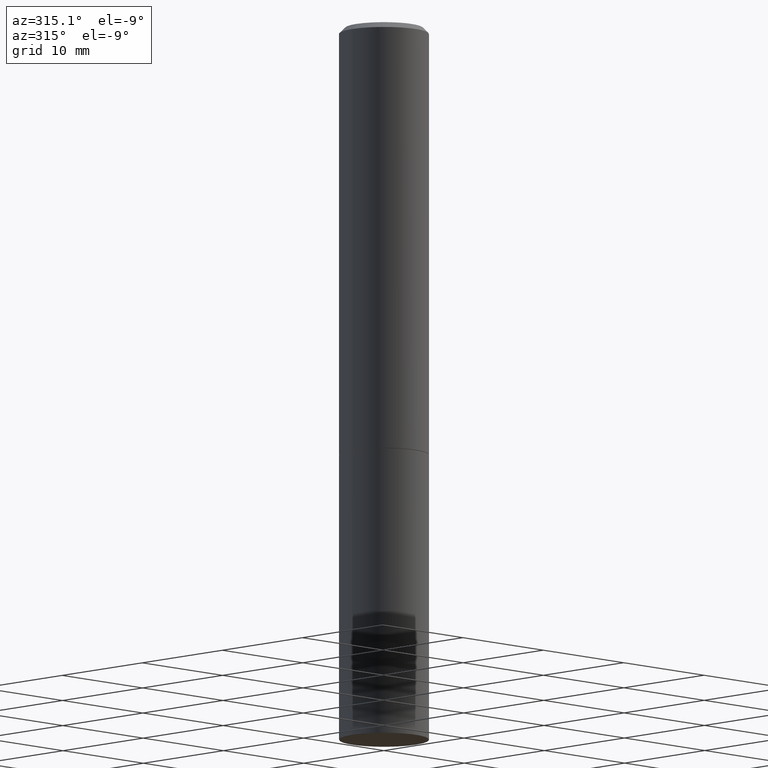
[diagram: clean part render]
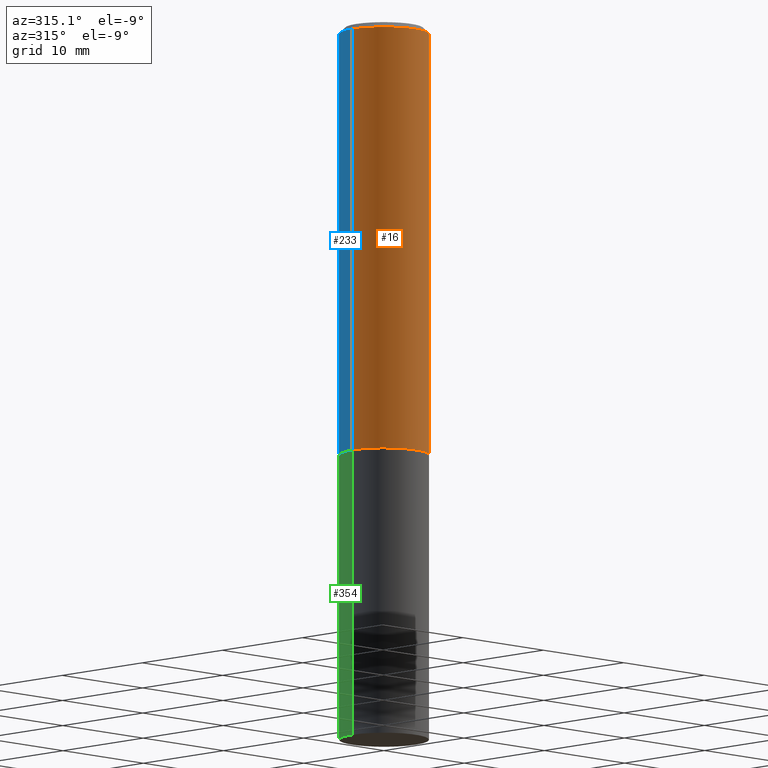
[diagram: same view with three faces highlighted in distinct colors, each labeled with its STEP entity id]
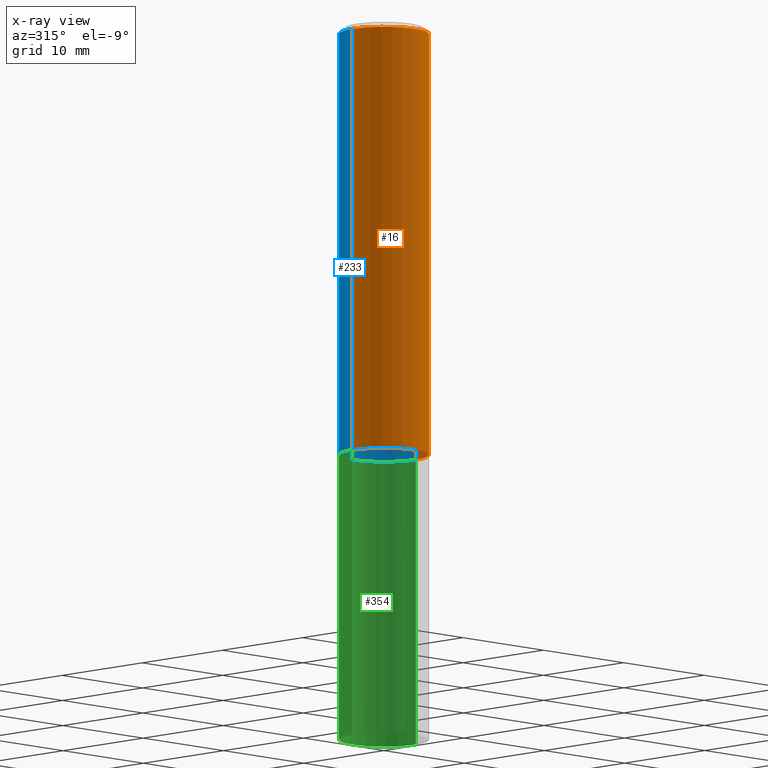
[diagram: x-ray of the same camera — body ghosted, the three highlighted faces saturated]
A machine part, auxiliary view with three faces highlighted in distinct colors.
The next image is the same camera in x-ray (body ghosted, the three faces saturated) — at least one of them is partly hidden behind the body in this view.
Their STEP definitions:

[orange] entity #16 — the highlighted cylindrical surface (partial cylindrical patch) has radius 3.9687 mm, axis along (-0, 0, 1).
#16 = ADVANCED_FACE ( 'NONE', ( #72 ), #362, .T. ) ;
#17 = CARTESIAN_POINT ( 'NONE',  ( 0.1562499999999999445, -1.091087918388478779E-15, 7.619026212181146173E-30 ) ) ;
#22 = ORIENTED_EDGE ( 'NONE', *, *, #276, .F. ) ;
#60 = CIRCLE ( 'NONE', #217, 0.1562500000000000000 ) ;
#62 = VECTOR ( 'NONE', #173, 39.37007874015748143 ) ;
#72 = FACE_OUTER_BOUND ( 'NONE', #101, .T. ) ;
#84 = DIRECTION ( 'NONE',  ( 1.000000000000000000, -6.982962677686265133E-15, 0.000000000000000000 ) ) ;
#94 = EDGE_CURVE ( 'NONE', #188, #196, #289, .T. ) ;
#100 = CARTESIAN_POINT ( 'NONE',  ( -0.1562499999999998335, 1.021258291611615086E-15, -0.02000000000000003511 ) ) ;
#101 = EDGE_LOOP ( 'NONE', ( #22, #306, #190, #184 ) ) ;
#105 = DIRECTION ( 'NONE',  ( 1.000000000000000000, -6.982962677686266711E-15, 4.876176775795935232E-29 ) ) ;
#141 = CARTESIAN_POINT ( 'NONE',  ( -0.1562500000000000000, -1.541557052226212102E-15, -1.499000000000000110 ) ) ;
#169 = CARTESIAN_POINT ( 'NONE',  ( 3.665757740471519853E-29, -5.233730526925875958E-15, -1.499000000000000110 ) ) ;
#173 = DIRECTION ( 'NONE',  ( -2.445468806185136877E-29, 3.491481338843145188E-15, 1.000000000000000000 ) ) ;
#184 = ORIENTED_EDGE ( 'NONE', *, *, #94, .F. ) ;
#188 = VERTEX_POINT ( 'NONE', #100 ) ;
#190 = ORIENTED_EDGE ( 'NONE', *, *, #212, .T. ) ;
#196 = VERTEX_POINT ( 'NONE', #281 ) ;
#203 = LINE ( 'NONE', #317, #62 ) ;
#212 = EDGE_CURVE ( 'NONE', #310, #196, #253, .T. ) ;
#217 = AXIS2_PLACEMENT_3D ( 'NONE', #169, #238, #364 ) ;
#234 = DIRECTION ( 'NONE',  ( -2.445468806185136597E-29, 3.491481338843145583E-15, 1.000000000000000000 ) ) ;
#235 = DIRECTION ( 'NONE',  ( -2.445468806185136597E-29, 3.491481338843145583E-15, 1.000000000000000000 ) ) ;
#237 = VECTOR ( 'NONE', #355, 39.37007874015748143 ) ;
#238 = DIRECTION ( 'NONE',  ( -2.445468806185136597E-29, 3.491481338843145583E-15, 1.000000000000000000 ) ) ;
#249 = EDGE_CURVE ( 'NONE', #314, #310, #60, .T. ) ;
#253 = LINE ( 'NONE', #17, #237 ) ;
#254 = CARTESIAN_POINT ( 'NONE',  ( 4.890937612370281041E-31, -6.982962677686302702E-17, -0.02000000000000003511 ) ) ;
#256 = AXIS2_PLACEMENT_3D ( 'NONE', #359, #234, #105 ) ;
#276 = EDGE_CURVE ( 'NONE', #314, #188, #203, .T. ) ;
#281 = CARTESIAN_POINT ( 'NONE',  ( 0.1562499999999998335, -1.141782438928663724E-15, -0.02000000000000003511 ) ) ;
#289 = CIRCLE ( 'NONE', #296, 0.1562499999999998335 ) ;
#296 = AXIS2_PLACEMENT_3D ( 'NONE', #254, #235, #84 ) ;
#306 = ORIENTED_EDGE ( 'NONE', *, *, #249, .T. ) ;
#310 = VERTEX_POINT ( 'NONE', #319 ) ;
#314 = VERTEX_POINT ( 'NONE', #141 ) ;
#317 = CARTESIAN_POINT ( 'NONE',  ( -0.1562499999999999445, 1.110223024625156146E-15, -7.685836078523286956E-30 ) ) ;
#319 = CARTESIAN_POINT ( 'NONE',  ( 0.1562500000000000000, -6.324818445314355132E-15, -1.499000000000000110 ) ) ;
#355 = DIRECTION ( 'NONE',  ( -2.445468806185136877E-29, 3.491481338843145188E-15, 1.000000000000000000 ) ) ;
#359 = CARTESIAN_POINT ( 'NONE',  ( 0.000000000000000000, 0.000000000000000000, 0.000000000000000000 ) ) ;
#362 = CYLINDRICAL_SURFACE ( 'NONE', #256, 0.1562499999999999445 ) ;
#364 = DIRECTION ( 'NONE',  ( 1.000000000000000000, -6.982962677686269077E-15, 0.000000000000000000 ) ) ;

[blue] entity #233 — the highlighted cylindrical surface (partial cylindrical patch) has radius 3.9687 mm, axis along (-0, 0, 1).
#2 = CYLINDRICAL_SURFACE ( 'NONE', #218, 0.1562499999999999445 ) ;
#7 = DIRECTION ( 'NONE',  ( -2.445468806185136597E-29, 3.491481338843145583E-15, 1.000000000000000000 ) ) ;
#17 = CARTESIAN_POINT ( 'NONE',  ( 0.1562499999999999445, -1.091087918388478779E-15, 7.619026212181146173E-30 ) ) ;
#32 = CARTESIAN_POINT ( 'NONE',  ( 3.665757740471519853E-29, -5.233730526925875958E-15, -1.499000000000000110 ) ) ;
#40 = EDGE_LOOP ( 'NONE', ( #222, #170, #257, #219 ) ) ;
#62 = VECTOR ( 'NONE', #173, 39.37007874015748143 ) ;
#76 = AXIS2_PLACEMENT_3D ( 'NONE', #32, #7, #114 ) ;
#88 = DIRECTION ( 'NONE',  ( -2.445468806185136597E-29, 3.491481338843145583E-15, 1.000000000000000000 ) ) ;
#100 = CARTESIAN_POINT ( 'NONE',  ( -0.1562499999999998335, 1.021258291611615086E-15, -0.02000000000000003511 ) ) ;
#114 = DIRECTION ( 'NONE',  ( 1.000000000000000000, -6.982962677686269077E-15, 0.000000000000000000 ) ) ;
#115 = EDGE_CURVE ( 'NONE', #196, #188, #277, .T. ) ;
#135 = FACE_OUTER_BOUND ( 'NONE', #40, .T. ) ;
#141 = CARTESIAN_POINT ( 'NONE',  ( -0.1562500000000000000, -1.541557052226212102E-15, -1.499000000000000110 ) ) ;
#144 = CARTESIAN_POINT ( 'NONE',  ( 0.000000000000000000, 0.000000000000000000, 0.000000000000000000 ) ) ;
#152 = AXIS2_PLACEMENT_3D ( 'NONE', #323, #153, #258 ) ;
#153 = DIRECTION ( 'NONE',  ( -2.445468806185136597E-29, 3.491481338843145583E-15, 1.000000000000000000 ) ) ;
#170 = ORIENTED_EDGE ( 'NONE', *, *, #276, .T. ) ;
#173 = DIRECTION ( 'NONE',  ( -2.445468806185136877E-29, 3.491481338843145188E-15, 1.000000000000000000 ) ) ;
#188 = VERTEX_POINT ( 'NONE', #100 ) ;
#196 = VERTEX_POINT ( 'NONE', #281 ) ;
#203 = LINE ( 'NONE', #317, #62 ) ;
#212 = EDGE_CURVE ( 'NONE', #310, #196, #253, .T. ) ;
#218 = AXIS2_PLACEMENT_3D ( 'NONE', #144, #88, #232 ) ;
#219 = ORIENTED_EDGE ( 'NONE', *, *, #212, .F. ) ;
#222 = ORIENTED_EDGE ( 'NONE', *, *, #348, .T. ) ;
#232 = DIRECTION ( 'NONE',  ( 1.000000000000000000, -6.982962677686266711E-15, 4.876176775795935232E-29 ) ) ;
#233 = ADVANCED_FACE ( 'NONE', ( #135 ), #2, .T. ) ;
#237 = VECTOR ( 'NONE', #355, 39.37007874015748143 ) ;
#253 = LINE ( 'NONE', #17, #237 ) ;
#257 = ORIENTED_EDGE ( 'NONE', *, *, #115, .F. ) ;
#258 = DIRECTION ( 'NONE',  ( 1.000000000000000000, -6.982962677686265133E-15, 0.000000000000000000 ) ) ;
#267 = CIRCLE ( 'NONE', #76, 0.1562500000000000000 ) ;
#276 = EDGE_CURVE ( 'NONE', #314, #188, #203, .T. ) ;
#277 = CIRCLE ( 'NONE', #152, 0.1562499999999998335 ) ;
#281 = CARTESIAN_POINT ( 'NONE',  ( 0.1562499999999998335, -1.141782438928663724E-15, -0.02000000000000003511 ) ) ;
#310 = VERTEX_POINT ( 'NONE', #319 ) ;
#314 = VERTEX_POINT ( 'NONE', #141 ) ;
#317 = CARTESIAN_POINT ( 'NONE',  ( -0.1562499999999999445, 1.110223024625156146E-15, -7.685836078523286956E-30 ) ) ;
#319 = CARTESIAN_POINT ( 'NONE',  ( 0.1562500000000000000, -6.324818445314355132E-15, -1.499000000000000110 ) ) ;
#323 = CARTESIAN_POINT ( 'NONE',  ( 4.890937612370281041E-31, -6.982962677686302702E-17, -0.02000000000000003511 ) ) ;
#348 = EDGE_CURVE ( 'NONE', #310, #314, #267, .T. ) ;
#355 = DIRECTION ( 'NONE',  ( -2.445468806185136877E-29, 3.491481338843145188E-15, 1.000000000000000000 ) ) ;

[green] entity #354 — the highlighted cylindrical surface (partial cylindrical patch) has radius 3.9688 mm, axis along (-0, 0, 1).
#9 = CYLINDRICAL_SURFACE ( 'NONE', #215, 0.1562500000000000000 ) ;
#23 = VERTEX_POINT ( 'NONE', #46 ) ;
#24 = ORIENTED_EDGE ( 'NONE', *, *, #31, .T. ) ;
#31 = EDGE_CURVE ( 'NONE', #280, #23, #163, .T. ) ;
#39 = EDGE_CURVE ( 'NONE', #119, #55, #79, .T. ) ;
#44 = CARTESIAN_POINT ( 'NONE',  ( 3.668203209277704895E-29, -5.237222008264718177E-15, -1.500000000000000222 ) ) ;
#46 = CARTESIAN_POINT ( 'NONE',  ( -0.1562500000000000000, -5.872739653061135414E-15, -1.500000000000000222 ) ) ;
#49 = DIRECTION ( 'NONE',  ( -2.445468806185136877E-29, 3.491481338843145188E-15, 1.000000000000000000 ) ) ;
#53 = EDGE_CURVE ( 'NONE', #119, #280, #64, .T. ) ;
#55 = VERTEX_POINT ( 'NONE', #106 ) ;
#64 = CIRCLE ( 'NONE', #346, 0.1562500000000000000 ) ;
#79 = LINE ( 'NONE', #198, #85 ) ;
#85 = VECTOR ( 'NONE', #49, 39.37007874015748143 ) ;
#106 = CARTESIAN_POINT ( 'NONE',  ( 0.1562500000000000000, -6.328309926653198139E-15, -1.500000000000000222 ) ) ;
#109 = CARTESIAN_POINT ( 'NONE',  ( 0.1562500000000000000, -9.819791265496344905E-15, -2.500000000000000000 ) ) ;
#116 = DIRECTION ( 'NONE',  ( -2.445468806185136597E-29, 3.491481338843145583E-15, 1.000000000000000000 ) ) ;
#119 = VERTEX_POINT ( 'NONE', #109 ) ;
#123 = EDGE_LOOP ( 'NONE', ( #252, #24, #347, #129 ) ) ;
#124 = FACE_OUTER_BOUND ( 'NONE', #123, .T. ) ;
#126 = DIRECTION ( 'NONE',  ( -2.445468806185136597E-29, 3.491481338843145583E-15, 1.000000000000000000 ) ) ;
#129 = ORIENTED_EDGE ( 'NONE', *, *, #39, .F. ) ;
#140 = CIRCLE ( 'NONE', #297, 0.1562500000000000000 ) ;
#160 = VECTOR ( 'NONE', #361, 39.37007874015748143 ) ;
#163 = LINE ( 'NONE', #287, #160 ) ;
#167 = CARTESIAN_POINT ( 'NONE',  ( 6.113672015462842613E-29, -8.728703347107864943E-15, -2.500000000000000000 ) ) ;
#186 = DIRECTION ( 'NONE',  ( 1.000000000000000000, -6.982962677686266711E-15, 4.876176775795936353E-29 ) ) ;
#198 = CARTESIAN_POINT ( 'NONE',  ( 0.1562500000000000000, -1.091087918388479174E-15, 7.619026212181150377E-30 ) ) ;
#202 = DIRECTION ( 'NONE',  ( 1.000000000000000000, -6.982962677686269077E-15, 0.000000000000000000 ) ) ;
#215 = AXIS2_PLACEMENT_3D ( 'NONE', #244, #116, #186 ) ;
#223 = EDGE_CURVE ( 'NONE', #55, #23, #140, .T. ) ;
#244 = CARTESIAN_POINT ( 'NONE',  ( 0.000000000000000000, 0.000000000000000000, 0.000000000000000000 ) ) ;
#252 = ORIENTED_EDGE ( 'NONE', *, *, #53, .T. ) ;
#280 = VERTEX_POINT ( 'NONE', #291 ) ;
#283 = DIRECTION ( 'NONE',  ( -2.445468806185136597E-29, 3.491481338843145583E-15, 1.000000000000000000 ) ) ;
#287 = CARTESIAN_POINT ( 'NONE',  ( -0.1562500000000000000, 1.110223024625156540E-15, -7.685836078523291160E-30 ) ) ;
#291 = CARTESIAN_POINT ( 'NONE',  ( -0.1562500000000000000, -5.872739653061135414E-15, -2.500000000000000000 ) ) ;
#297 = AXIS2_PLACEMENT_3D ( 'NONE', #44, #126, #331 ) ;
#331 = DIRECTION ( 'NONE',  ( 1.000000000000000000, -6.982962677686269077E-15, 0.000000000000000000 ) ) ;
#346 = AXIS2_PLACEMENT_3D ( 'NONE', #167, #283, #202 ) ;
#347 = ORIENTED_EDGE ( 'NONE', *, *, #223, .F. ) ;
#354 = ADVANCED_FACE ( 'NONE', ( #124 ), #9, .T. ) ;
#361 = DIRECTION ( 'NONE',  ( -2.445468806185136877E-29, 3.491481338843145188E-15, 1.000000000000000000 ) ) ;